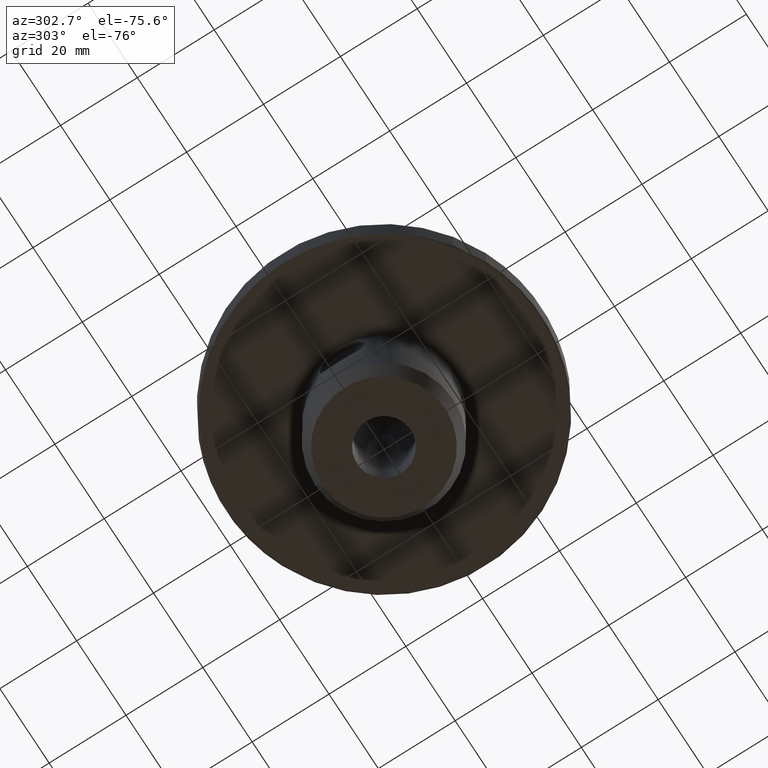
[diagram: clean part render]
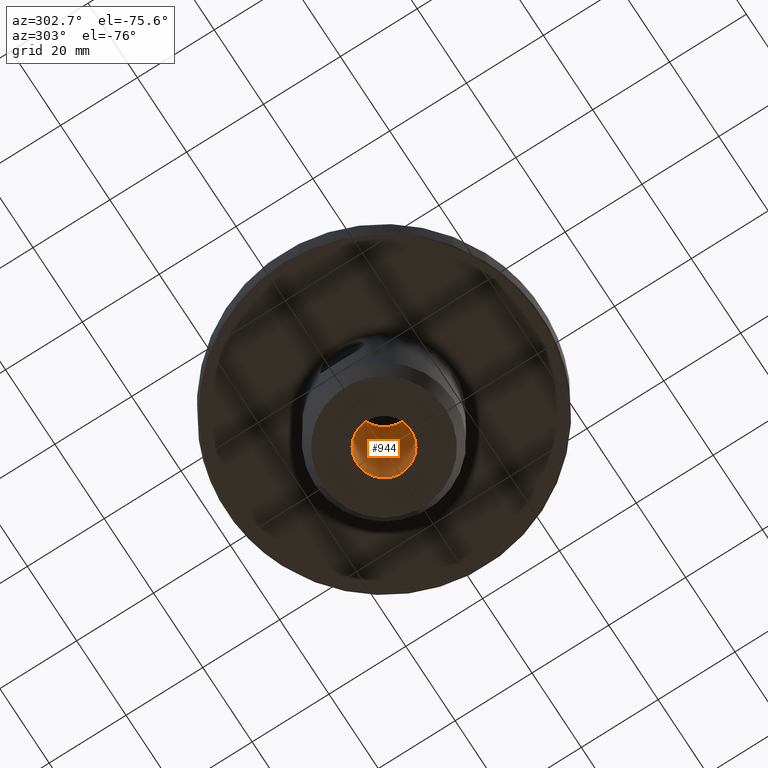
[diagram: same view with one face highlighted and labeled with its STEP entity id]
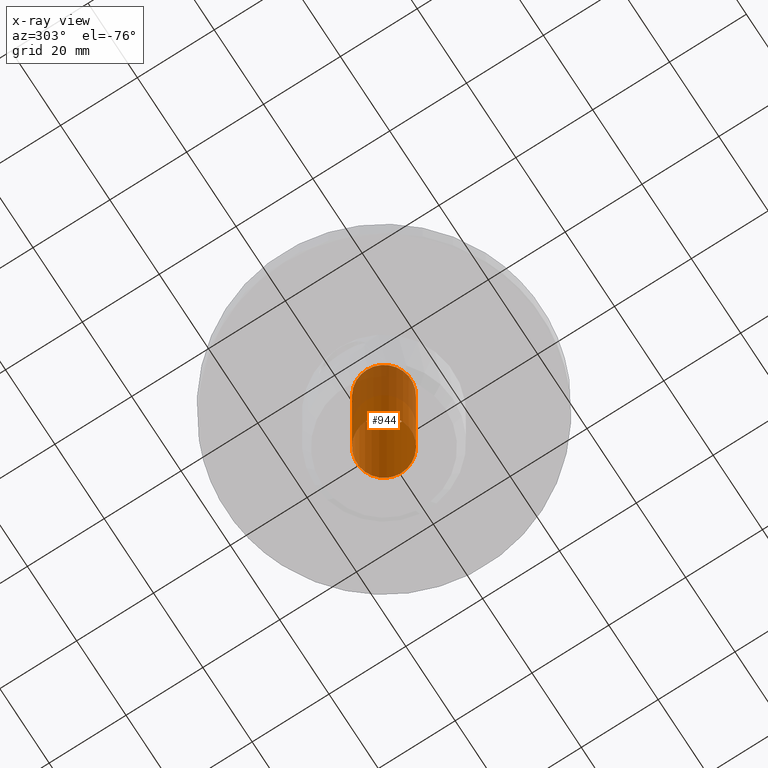
[diagram: x-ray of the same camera — body ghosted, the highlighted face saturated]
A machine part, auxiliary view. The second image highlights one B-rep face of the part: STEP entity #944.
The next image is the same camera in x-ray: the body ghosted, the highlighted face saturated — about 32% of this face is hidden behind the body in this view.
In plain terms, the highlighted cylindrical surface (bore or boss wall) has radius 7 mm, axis along (0, 0, -1).
Its self-contained STEP definition (entity closure, byte-faithful):
#114=CIRCLE('',#967,7.);
#162=CIRCLE('',#1072,7.);
#402=ORIENTED_EDGE('',*,*,#531,.T.);
#403=ORIENTED_EDGE('',*,*,#415,.F.);
#415=EDGE_CURVE('',#538,#538,#114,.T.);
#531=EDGE_CURVE('',#623,#623,#162,.T.);
#538=VERTEX_POINT('',#1392);
#623=VERTEX_POINT('',#1794);
#754=EDGE_LOOP('',(#402));
#755=EDGE_LOOP('',(#403));
#849=FACE_BOUND('',#754,.T.);
#850=FACE_BOUND('',#755,.T.);
#883=CYLINDRICAL_SURFACE('',#1071,7.);
#944=ADVANCED_FACE('',(#849,#850),#883,.F.);
#967=AXIS2_PLACEMENT_3D('',#1391,#1090,#1091);
#1071=AXIS2_PLACEMENT_3D('',#1792,#1326,#1327);
#1072=AXIS2_PLACEMENT_3D('',#1793,#1328,#1329);
#1090=DIRECTION('',(0.,0.,1.));
#1091=DIRECTION('',(1.,0.,0.));
#1326=DIRECTION('',(0.,0.,-1.));
#1327=DIRECTION('',(-1.,0.,0.));
#1328=DIRECTION('',(0.,0.,1.));
#1329=DIRECTION('',(1.,0.,0.));
#1391=CARTESIAN_POINT('',(0.,0.,-38.));
#1392=CARTESIAN_POINT('',(7.,0.,-38.));
#1792=CARTESIAN_POINT('',(0.,0.,7.));
#1793=CARTESIAN_POINT('',(0.,0.,7.));
#1794=CARTESIAN_POINT('',(7.,0.,7.));